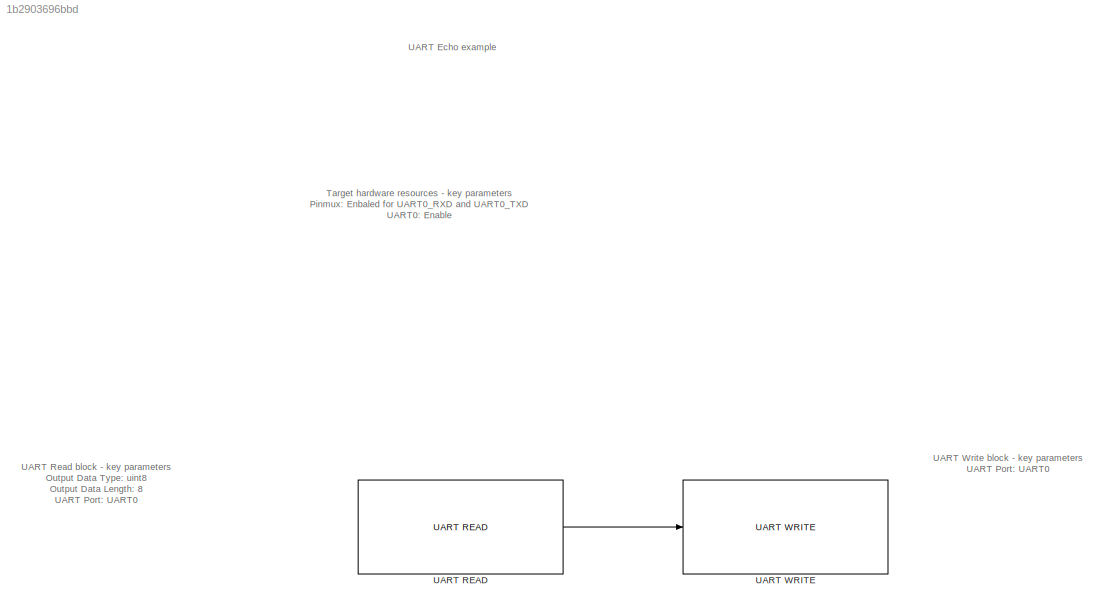
MODEL slx_1b2903696bbd
KIND model
CONFIG AbsTol = auto
CONFIG EnableMultiTasking = off
CONFIG FixedStep = auto
CONFIG MaxStep = auto
CONFIG MinStep = auto
CONFIG RelTol = 1e-3
CONFIG SampleTimeConstraint = Unconstrained
CONFIG SolverName = FixedStepAuto
CONFIG StartTime = 0.0
CONFIG StopTime = 10.0
BLOCK [Reference] UART READ  REF=peripheral_library_blocks_am263x/UART READ
  SourceBlock = peripheral_library_blocks_am263x/UART READ
  SourceType = UART_READ_AM263X
BLOCK [Reference] UART WRITE  REF=peripheral_library_blocks_am263x/UART WRITE
  SourceBlock = peripheral_library_blocks_am263x/UART WRITE
  SourceType = UART_WRITE_AM263X
ANNOTATION (root): UART Echo example
ANNOTATION (root): Target hardware resources - key parameters Pinmux: Enbaled for UART0_RXD and UART0_TXD UART0: Enable
ANNOTATION (root): UART Read block - key parameters Output Data Type: uint8 Output Data Length: 8 UART Port: UART0
ANNOTATION (root): UART Write block - key parameters UART Port: UART0
LINE UART READ:1 -> UART WRITE:1
